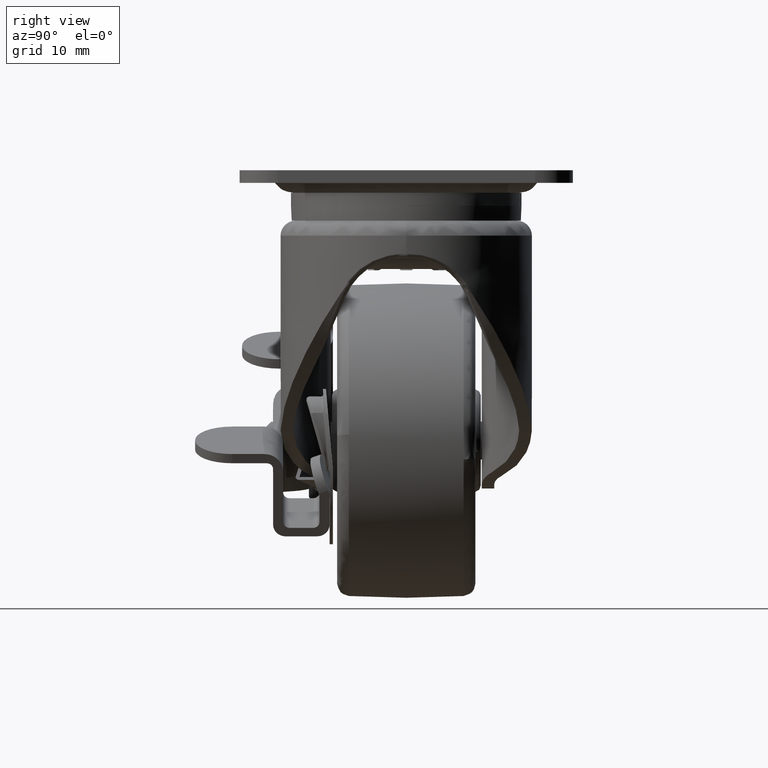
[diagram: clean part render]
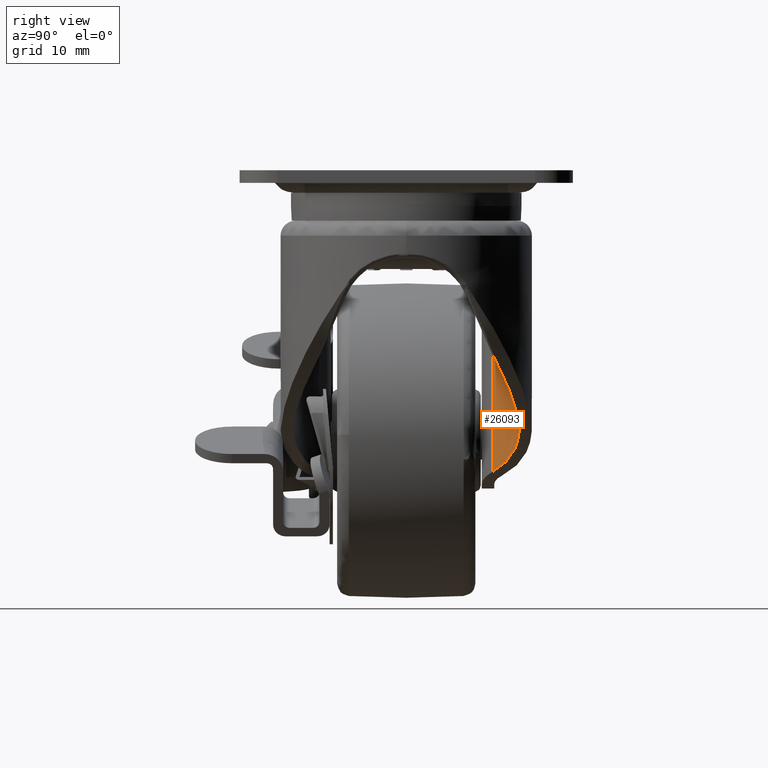
[diagram: same view with one face highlighted and labeled with its STEP entity id]
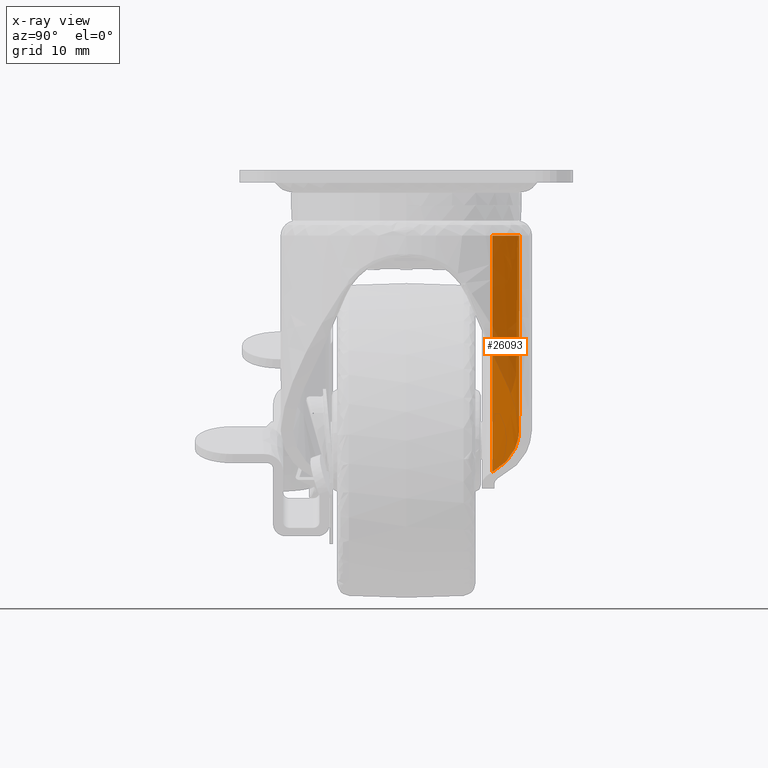
[diagram: x-ray of the same camera — body ghosted, the highlighted face saturated]
A machine part, right view. The second image highlights one B-rep face of the part: STEP entity #26093.
The next image is the same camera in x-ray: the body ghosted, the highlighted face saturated — about 57% of this face is hidden behind the body in this view.
In plain terms, the highlighted face is a freeform B-spline surface patch.
Its self-contained STEP definition (entity closure, byte-faithful):
#22355=CARTESIAN_POINT('',(-12.573735413230700,13.676593019532501,-10.425085915743241));
#22356=VERTEX_POINT('',#22355);
#22369=CARTESIAN_POINT('',(-0.862245567626831,17.984000000000002,-10.404999999999999));
#22370=VERTEX_POINT('',#22369);
#22371=CARTESIAN_POINT('',(-12.573735413230700,13.676593019532470,-10.425085915743241));
#22372=CARTESIAN_POINT('',(-7.514661498478218,17.983999999999995,-10.416409296992752));
#22373=CARTESIAN_POINT('',(-0.862245567626833,17.983999999999991,-10.404999999999999));
#22381=(BOUNDED_CURVE()B_SPLINE_CURVE(2,(#22371,#22372,#22373),.UNSPECIFIED.,.F.,.U.)CURVE()GEOMETRIC_REPRESENTATION_ITEM()QUASI_UNIFORM_CURVE()RATIONAL_B_SPLINE_CURVE((1.0,0.938212852047801,1.0))REPRESENTATION_ITEM(''));
#22382=EDGE_CURVE('',#22356,#22370,#22381,.T.);
#25799=CARTESIAN_POINT('',(-9.659590348826811,13.676593019532501,-47.996562736198101));
#25800=VERTEX_POINT('',#25799);
#25814=CARTESIAN_POINT('',(-9.659590348826811,13.676593019532501,-47.996562736198101));
#25815=CARTESIAN_POINT('',(-12.573735413230700,13.676593019532501,-10.425085915743241));
#25816=QUASI_UNIFORM_CURVE('',1,(#25814,#25815),.UNSPECIFIED.,.F.,.U.);
#25817=EDGE_CURVE('',#25800,#22356,#25816,.T.);
#25851=CARTESIAN_POINT('',(0.003999999999595,17.984000000000002,-21.573327089295098));
#25852=VERTEX_POINT('',#25851);
#25853=CARTESIAN_POINT('',(0.620040745304940,17.960250606237850,-41.463685343146047));
#25854=VERTEX_POINT('',#25853);
#25855=CARTESIAN_POINT('',(0.003999999999595,17.984000000000002,-21.573327089295098));
#25856=CARTESIAN_POINT('',(0.029498993763835,17.983925925890109,-22.396623423712800));
#25857=CARTESIAN_POINT('',(0.110644009767836,17.983690201104700,-25.016585405351812));
#25858=CARTESIAN_POINT('',(0.231255132488841,17.981189827635870,-28.910805588548779));
#25859=CARTESIAN_POINT('',(0.382013170485410,17.975480719133529,-33.778391621510472));
#25860=CARTESIAN_POINT('',(0.506215097410450,17.968663166603690,-37.788549899927823));
#25861=CARTESIAN_POINT('',(0.590950845765288,17.962404107886250,-40.524447808594473));
#25862=CARTESIAN_POINT('',(0.620040745304940,17.960250606237850,-41.463685343146047));
#25863=B_SPLINE_CURVE_WITH_KNOTS('',3,(#25855,#25856,#25857,#25858,#25859,#25860,#25861,#25862),.UNSPECIFIED.,.F.,.U.,(4,1,1,1,1,4),(0.0,0.123723638568992,0.393723639629798,0.585217158134376,0.855217069625636,0.996364533593346),.UNSPECIFIED.);
#25864=EDGE_CURVE('',#25852,#25854,#25863,.T.);
#25994=CARTESIAN_POINT('',(0.003999999999595,17.984000000000002,-21.573327089295098));
#25995=CARTESIAN_POINT('',(-0.862245567626831,17.984000000000002,-10.404999999999999));
#25996=QUASI_UNIFORM_CURVE('',1,(#25994,#25995),.UNSPECIFIED.,.F.,.U.);
#25997=EDGE_CURVE('',#25852,#22370,#25996,.T.);
#26050=CARTESIAN_POINT('',(-10.049258805745318,13.266457569950372,-48.971724116830750));
#26051=CARTESIAN_POINT('',(-13.110932464034631,13.266457569950372,-9.498191282340351));
#26052=CARTESIAN_POINT('',(-4.645890614470302,18.226645431248354,-48.552624308191135));
#26053=CARTESIAN_POINT('',(-7.707564272759612,18.226645431248365,-9.079091473700721));
#26054=CARTESIAN_POINT('',(2.674555068984017,17.973304541691199,-47.984830799311531));
#26055=CARTESIAN_POINT('',(-0.387118589305294,17.973304541691199,-8.511297964821111));
#26063=(BOUNDED_SURFACE()B_SPLINE_SURFACE(1,2,((#26050,#26052,#26054),(#26051,#26053,#26055)),.UNSPECIFIED.,.F.,.F.,.U.)B_SPLINE_SURFACE_WITH_KNOTS((2,2),(3,3),(0.0,39.592090624586319),(0.0,14.126929178298839),.UNSPECIFIED.)GEOMETRIC_REPRESENTATION_ITEM()RATIONAL_B_SPLINE_SURFACE(((0.998151930646006,0.923224090839543,0.996429619478887),(0.998151930646006,0.923224090839543,0.996429619478887)))REPRESENTATION_ITEM('')SURFACE());
#26064=ORIENTED_EDGE('',*,*,#25817,.F.);
#26065=CARTESIAN_POINT('',(-9.659590348826811,13.676593019532501,-47.996562736198101));
#26066=CARTESIAN_POINT('',(-9.270127605588488,14.020752130695771,-47.805648094108093));
#26067=CARTESIAN_POINT('',(-8.872002429468878,14.342196913644511,-47.604802178782592));
#26068=CARTESIAN_POINT('',(-8.060589708976048,14.942386623190650,-47.182419065643387));
#26069=CARTESIAN_POINT('',(-7.647297403060350,15.221123566067799,-46.960881471341658));
#26070=CARTESIAN_POINT('',(-6.807259003961682,15.737711743435920,-46.496075775051821));
#26071=CARTESIAN_POINT('',(-6.380509850494256,15.975558354120460,-46.252807988830718));
#26072=CARTESIAN_POINT('',(-5.731333232160454,16.302495232690980,-45.870673435695451));
#26073=CARTESIAN_POINT('',(-5.513429936720144,16.406496901409891,-45.740421449886597));
#26074=CARTESIAN_POINT('',(-5.184420172700787,16.555094739731299,-45.540600154635243));
#26075=CARTESIAN_POINT('',(-5.074390997207138,16.603392952964789,-45.473252390237477));
#26076=CARTESIAN_POINT('',(-4.853631430856149,16.697527391159241,-45.337052022075248));
#26077=CARTESIAN_POINT('',(-4.742770232080048,16.743414928467569,-45.268116942917217));
#26078=CARTESIAN_POINT('',(-4.188805216361602,16.965896866067339,-44.920909819947333));
#26079=CARTESIAN_POINT('',(-3.746466525398771,17.121841726925950,-44.634907810196538));
#26080=CARTESIAN_POINT('',(-2.864345636215412,17.393062877409200,-44.046269947368408));
#26081=CARTESIAN_POINT('',(-2.424561728819521,17.508331307215059,-43.743633985961146));
#26082=CARTESIAN_POINT('',(-1.110160033379559,17.796948096062909,-42.810424914991522));
#26083=CARTESIAN_POINT('',(-0.240523810881642,17.913364413325841,-42.154588315793809));
#26084=CARTESIAN_POINT('',(0.620040745304935,17.960250606237850,-41.463685343146047));
#26085=B_SPLINE_CURVE_WITH_KNOTS('',3,(#26065,#26066,#26067,#26068,#26069,#26070,#26071,#26072,#26073,#26074,#26075,#26076,#26077,#26078,#26079,#26080,#26081,#26082,#26083,#26084),.UNSPECIFIED.,.F.,.U.,(4,2,2,2,2,2,2,2,2,4),(0.0,0.124999999999998,0.249999999999996,0.374999999999994,0.437499999999993,0.468749999999993,0.499999999999993,0.624999999999995,0.749999999999997,1.0),.UNSPECIFIED.);
#26086=EDGE_CURVE('',#25800,#25854,#26085,.T.);
#26087=ORIENTED_EDGE('',*,*,#26086,.T.);
#26088=ORIENTED_EDGE('',*,*,#25864,.F.);
#26089=ORIENTED_EDGE('',*,*,#25997,.T.);
#26090=ORIENTED_EDGE('',*,*,#22382,.F.);
#26091=EDGE_LOOP('',(#26064,#26087,#26088,#26089,#26090));
#26092=FACE_OUTER_BOUND('',#26091,.T.);
#26093=ADVANCED_FACE('',(#26092),#26063,.F.);